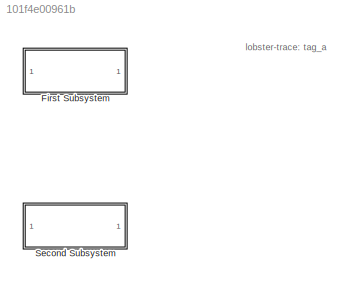
MODEL slx_101f4e00961b
KIND library
CONFIG AbsTol = auto
CONFIG EnableMultiTasking = off
CONFIG FixedStep = auto
CONFIG MaxStep = auto
CONFIG MinStep = auto
CONFIG RelTol = 1e-3
CONFIG SampleTimeConstraint = Unconstrained
CONFIG SolverName = VariableStepAuto
CONFIG StartTime = 0.0
CONFIG StopTime = 10.0
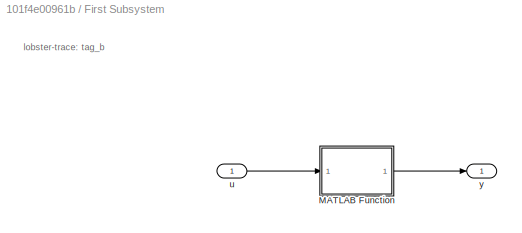
BLOCK [SubSystem] First Subsystem
  Ports = [1, 1]
  RequestExecContextInheritance = off
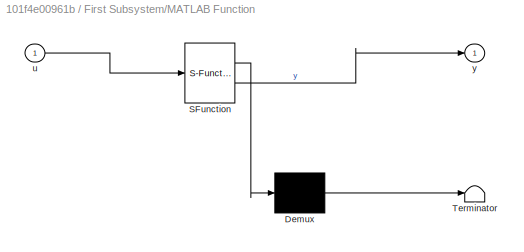
BLOCK [SubSystem] First Subsystem/MATLAB Function
  ErrorFcn = Stateflow.Translate.translate
  PermitHierarchicalResolution = ExplicitOnly
  Ports = [1, 1]
  RequestExecContextInheritance = off
  SFBlockType = MATLAB Function
  TreatAsAtomicUnit = on
BLOCK [Demux] First Subsystem/MATLAB Function/ Demux 
  Outputs = 1
  Ports = [1, 1]
BLOCK [S-Function] First Subsystem/MATLAB Function/ SFunction 
  EnableBusSupport = off
  FunctionName = sf_sfun
  PortCounts = [1 2]
  Ports = [1, 2]
  SFcnIsStateOwnerBlock = off
  SFunctionDeploymentMode = off
  Tag = Stateflow S-Function 2
BLOCK [Terminator] First Subsystem/MATLAB Function/ Terminator 
BLOCK [Inport] First Subsystem/MATLAB Function/u
BLOCK [Outport] First Subsystem/MATLAB Function/y
BLOCK [Inport] First Subsystem/u
BLOCK [Outport] First Subsystem/y
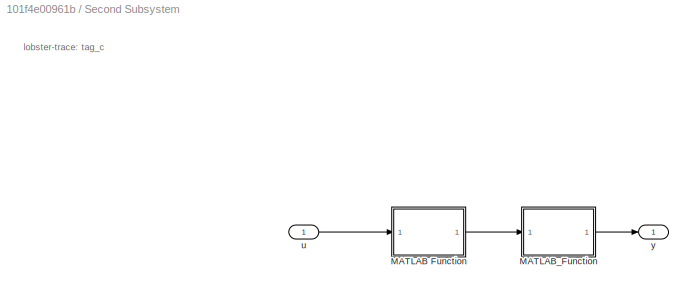
BLOCK [SubSystem] Second Subsystem
  Ports = [1, 1]
  RequestExecContextInheritance = off
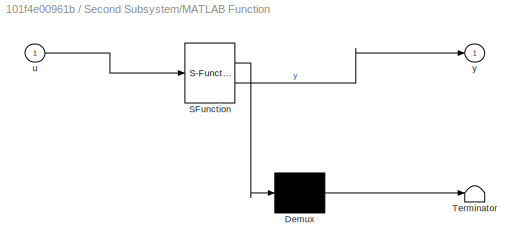
BLOCK [SubSystem] Second Subsystem/MATLAB Function
  ErrorFcn = Stateflow.Translate.translate
  PermitHierarchicalResolution = ExplicitOnly
  Ports = [1, 1]
  RequestExecContextInheritance = off
  SFBlockType = MATLAB Function
  TreatAsAtomicUnit = on
BLOCK [Demux] Second Subsystem/MATLAB Function/ Demux 
  Outputs = 1
  Ports = [1, 1]
BLOCK [S-Function] Second Subsystem/MATLAB Function/ SFunction 
  EnableBusSupport = off
  FunctionName = sf_sfun
  PortCounts = [1 2]
  Ports = [1, 2]
  SFcnIsStateOwnerBlock = off
  SFunctionDeploymentMode = off
  Tag = Stateflow S-Function 1
BLOCK [Terminator] Second Subsystem/MATLAB Function/ Terminator 
BLOCK [Inport] Second Subsystem/MATLAB Function/u
BLOCK [Outport] Second Subsystem/MATLAB Function/y
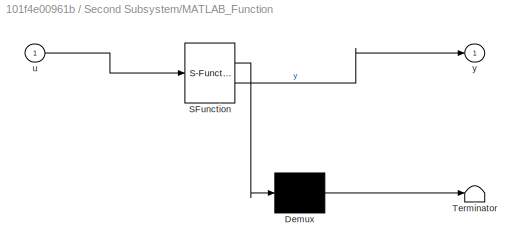
BLOCK [SubSystem] Second Subsystem/MATLAB_Function
  ErrorFcn = Stateflow.Translate.translate
  PermitHierarchicalResolution = ExplicitOnly
  Ports = [1, 1]
  RequestExecContextInheritance = off
  SFBlockType = MATLAB Function
  TreatAsAtomicUnit = on
BLOCK [Demux] Second Subsystem/MATLAB_Function/ Demux 
  Outputs = 1
  Ports = [1, 1]
BLOCK [S-Function] Second Subsystem/MATLAB_Function/ SFunction 
  EnableBusSupport = off
  FunctionName = sf_sfun
  PortCounts = [1 2]
  Ports = [1, 2]
  SFcnIsStateOwnerBlock = off
  SFunctionDeploymentMode = off
  Tag = Stateflow S-Function 3
BLOCK [Terminator] Second Subsystem/MATLAB_Function/ Terminator 
BLOCK [Inport] Second Subsystem/MATLAB_Function/u
BLOCK [Outport] Second Subsystem/MATLAB_Function/y
BLOCK [Inport] Second Subsystem/u
BLOCK [Outport] Second Subsystem/y
ANNOTATION (root): lobster-trace: tag_a
ANNOTATION First Subsystem: lobster-trace: tag_b
ANNOTATION Second Subsystem: lobster-trace: tag_c
LINE First Subsystem/MATLAB Function:1 -> First Subsystem/y:1
LINE First Subsystem/u:1 -> First Subsystem/MATLAB Function:1
LINE Second Subsystem/MATLAB Function:1 -> Second Subsystem/MATLAB_Function:1
LINE Second Subsystem/MATLAB_Function:1 -> Second Subsystem/y:1
LINE Second Subsystem/u:1 -> Second Subsystem/MATLAB Function:1
CHART First Subsystem/MATLAB Function states=1 transitions=1
  STATE_LABEL 'eML_blk_kernel()'
  STATE_LABEL 'SCRIPT:\nfunction y = fcn(u)\n\ny = u;\n'
CHART Second Subsystem/MATLAB_Function states=1 transitions=1
  STATE_LABEL 'eML_blk_kernel()'
  STATE_LABEL 'SCRIPT:\nfunction y = fcn(u)\n\ny = u;\n'
CHART Second Subsystem/MATLAB Function states=1 transitions=1
  STATE_LABEL 'eML_blk_kernel()'
  STATE_LABEL 'SCRIPT:\nfunction y = fcn(u)\n\ny = u;\n'
CHART  states=0 transitions=0
CHART  states=0 transitions=0
CHART  states=0 transitions=0
